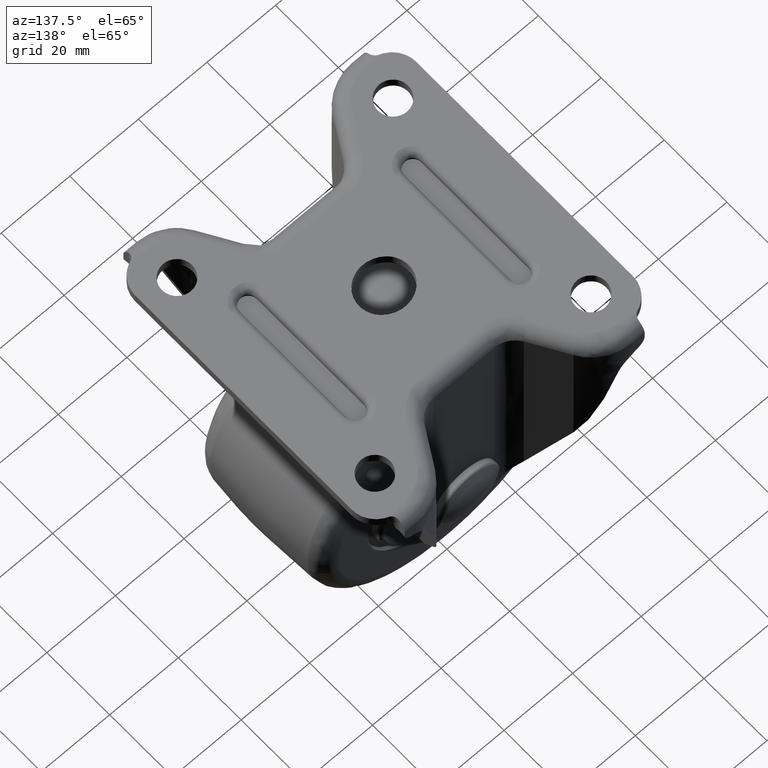
[diagram: clean part render]
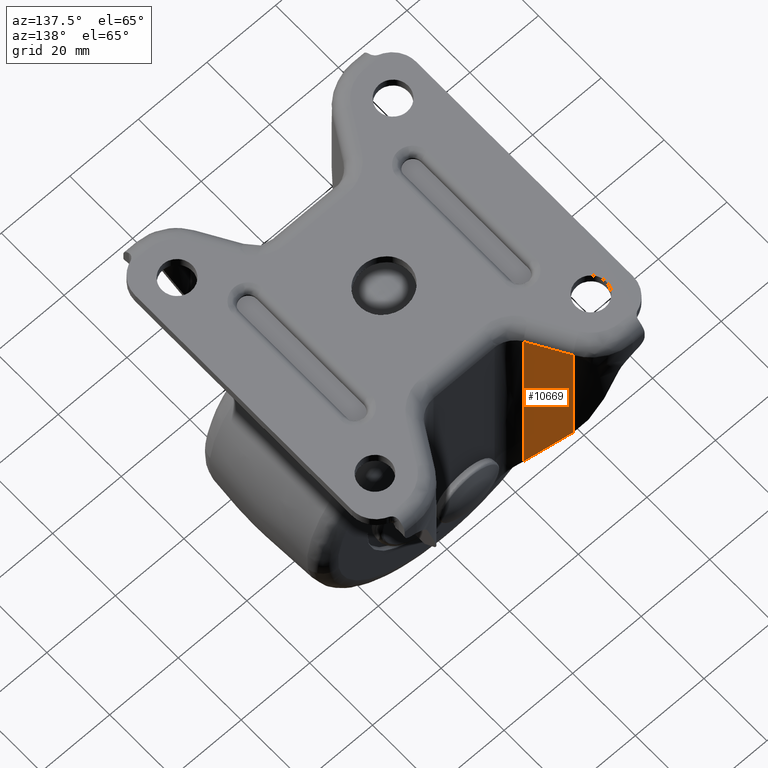
[diagram: same view with one face highlighted and labeled with its STEP entity id]
A machine part, auxiliary view. The second image highlights one B-rep face of the part: STEP entity #10669.
In plain terms, the highlighted face is a freeform B-spline surface patch.
Its self-contained STEP definition (entity closure, byte-faithful):
#8394=CARTESIAN_POINT('',(-14.506444930000059,28.742476551304101,-2.316139000000175));
#8395=VERTEX_POINT('',#8394);
#8401=CARTESIAN_POINT('',(-14.468953329209061,28.679387027176752,-2.455930934327945));
#8402=VERTEX_POINT('',#8401);
#8403=CARTESIAN_POINT('',(-14.506444930000059,28.742476551304101,-2.316139000000175));
#8404=CARTESIAN_POINT('',(-14.468953329209061,28.679387027176752,-2.455930934327945));
#8405=QUASI_UNIFORM_CURVE('',1,(#8403,#8404),.UNSPECIFIED.,.F.,.U.);
#8406=EDGE_CURVE('',#8395,#8402,#8405,.T.);
#8439=CARTESIAN_POINT('',(-20.182175332901199,38.293392560193901,19.259310145162800));
#8440=VERTEX_POINT('',#8439);
#8441=CARTESIAN_POINT('',(-20.182175332901199,38.293392560193901,19.259310145162800));
#8442=CARTESIAN_POINT('',(-14.506444930000059,28.742476551304101,-2.316139000000175));
#8443=QUASI_UNIFORM_CURVE('',1,(#8441,#8442),.UNSPECIFIED.,.F.,.U.);
#8444=EDGE_CURVE('',#8440,#8395,#8443,.T.);
#9884=CARTESIAN_POINT('',(-20.182175332901199,38.293392560193901,58.500000000000000));
#9885=VERTEX_POINT('',#9884);
#9897=CARTESIAN_POINT('',(-20.182175332901199,38.293392560193901,19.259310145162800));
#9898=CARTESIAN_POINT('',(-20.182175332901199,38.293392560193901,58.500000000000000));
#9899=QUASI_UNIFORM_CURVE('',1,(#9897,#9898),.UNSPECIFIED.,.F.,.U.);
#9900=EDGE_CURVE('',#8440,#9885,#9899,.T.);
#10647=CARTESIAN_POINT('',(-20.467550760912260,38.773612117934327,-5.500679566353199));
#10648=CARTESIAN_POINT('',(-14.183577747957379,28.199167211568650,-5.500679566353199));
#10649=CARTESIAN_POINT('',(-20.467550760912260,38.773612117934327,61.544750266990739));
#10650=CARTESIAN_POINT('',(-14.183577747957379,28.199167211568650,61.544750266990739));
#10651=B_SPLINE_SURFACE_WITH_KNOTS('',1,1,((#10647,#10649),(#10648,#10650)),.UNSPECIFIED.,.F.,.F.,.U.,(2,2),(2,2),(0.0,12.300699244567699),(0.0,67.045429833343945),.UNSPECIFIED.);
#10652=ORIENTED_EDGE('',*,*,#9900,.T.);
#10653=CARTESIAN_POINT('',(-14.468953329209061,28.679387027176752,58.500000000000000));
#10654=VERTEX_POINT('',#10653);
#10655=CARTESIAN_POINT('',(-20.182175332901199,38.293392560193901,58.500000000000000));
#10656=CARTESIAN_POINT('',(-14.468953329209061,28.679387027176752,58.500000000000000));
#10657=QUASI_UNIFORM_CURVE('',1,(#10655,#10656),.UNSPECIFIED.,.F.,.U.);
#10658=EDGE_CURVE('',#9885,#10654,#10657,.T.);
#10659=ORIENTED_EDGE('',*,*,#10658,.T.);
#10660=CARTESIAN_POINT('',(-14.468953329209061,28.679387027176752,-2.455930934327945));
#10661=CARTESIAN_POINT('',(-14.468953329209061,28.679387027176752,58.500000000000000));
#10662=QUASI_UNIFORM_CURVE('',1,(#10660,#10661),.UNSPECIFIED.,.F.,.U.);
#10663=EDGE_CURVE('',#8402,#10654,#10662,.T.);
#10664=ORIENTED_EDGE('',*,*,#10663,.F.);
#10665=ORIENTED_EDGE('',*,*,#8406,.F.);
#10666=ORIENTED_EDGE('',*,*,#8444,.F.);
#10667=EDGE_LOOP('',(#10652,#10659,#10664,#10665,#10666));
#10668=FACE_OUTER_BOUND('',#10667,.T.);
#10669=ADVANCED_FACE('',(#10668),#10651,.F.);